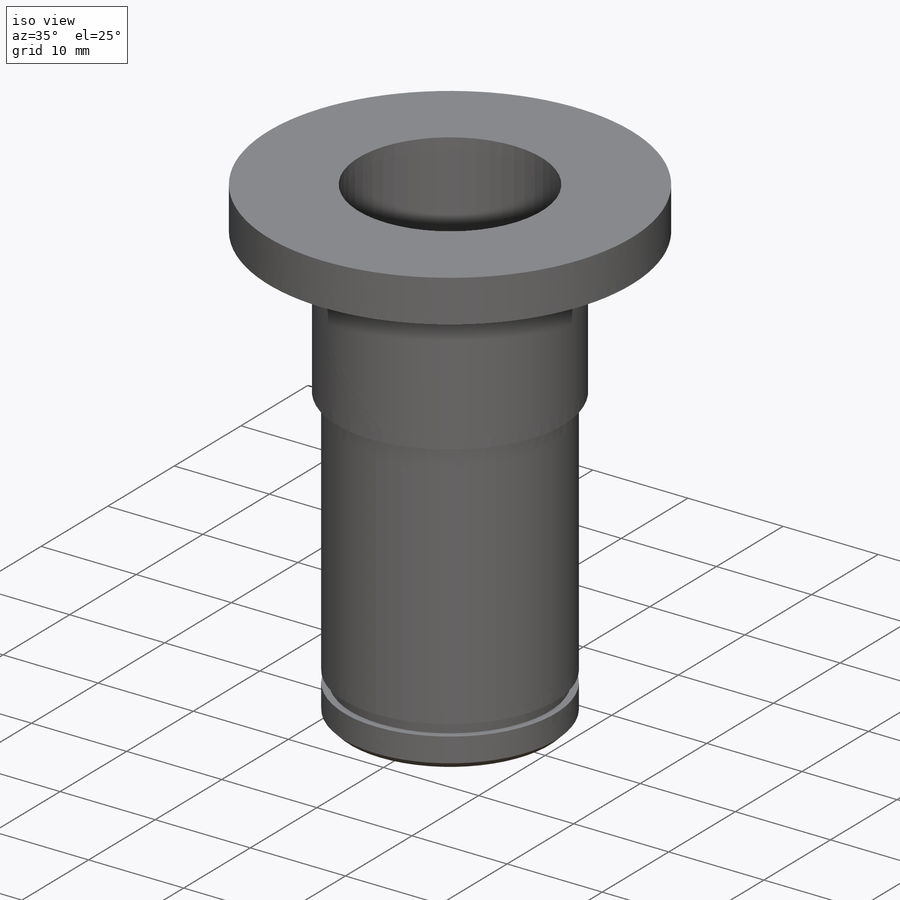
[diagram: iso view]
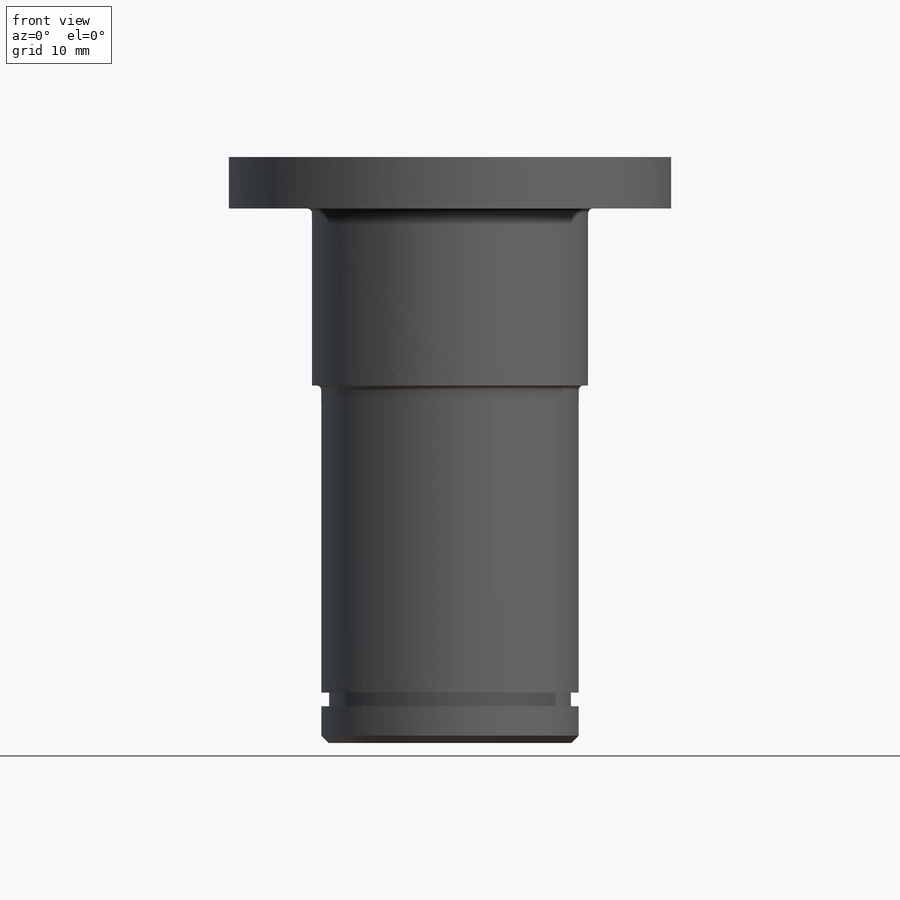
[diagram: front view]
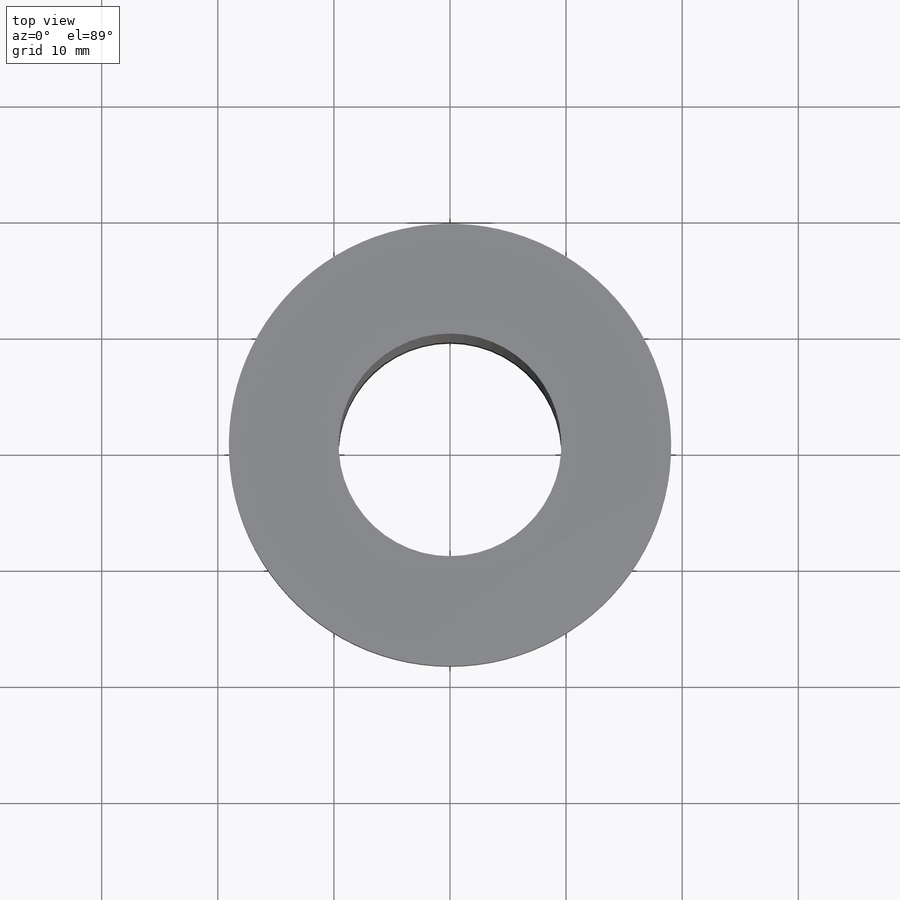
[diagram: top view]
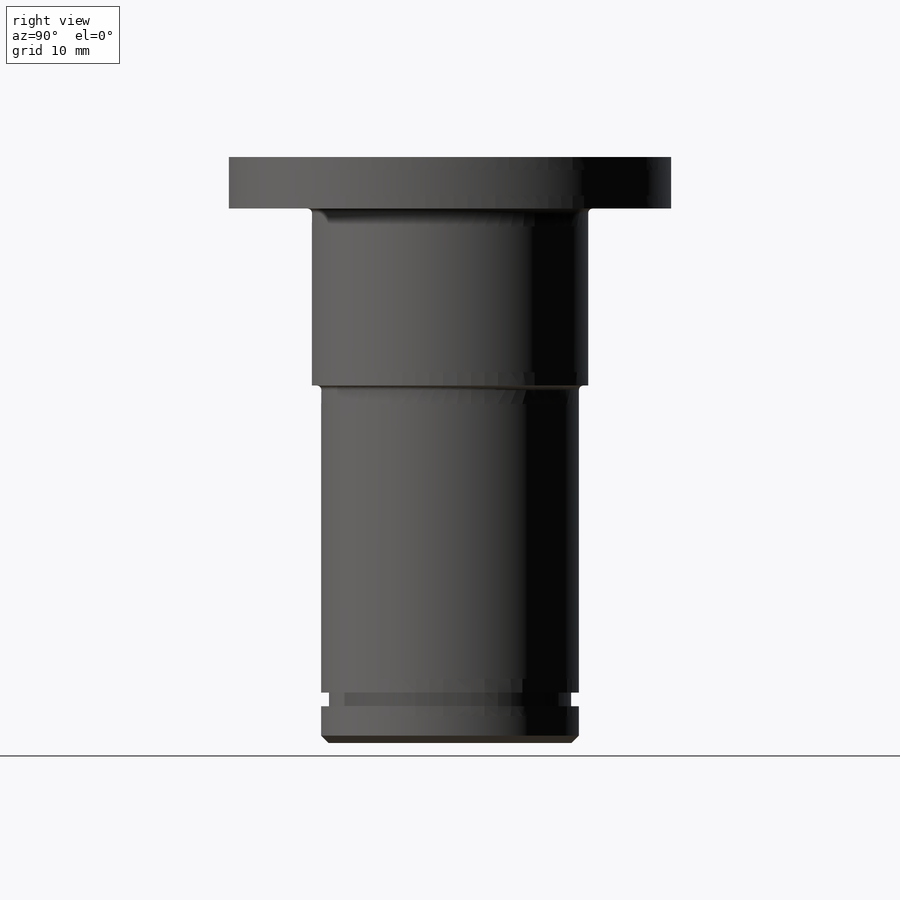
[diagram: right view]
SOLIDWORKS PART (.sldprt)
format: sldprt  version: not decoded by parser v0  size: 384,000 bytes
history: native  units: mm
features: chamfer x13, plane x3, sketch x2, material x1, revolve x1, cut_revolve x1, fillet x1 (+11 scaffold rows collapsed)
feature tree (33):
  scaffold x11  (default folders/planes/origin — collapsed)
  material  "6061-T6 Al"
  plane  "XY"
  plane  "XZ"
  plane  "YZ"
  sketch  "Sketch1"  dims[c1.D1=19.177mm c1.D2=22.1996mm c1.D3=38.1mm c1.D4=39.7002mm c1.D5=4.445mm c2.D4=15.24mm c2.D6=46.0375mm c2.D7=23.7998mm]
  revolve  "Revolve1"  Angle=360deg
  chamfer  "Chamfer1"  Distance=0.635mm Angle=45deg ID=400816004
  chamfer  "stress:Restraint1-1"  Distance=0mm RestraintType=0mm Value=0mm cosRestraintComp:1=0mm cosRestraintComp:2=0mm cosRestraintComp:3=0mm cosRestraintComp:4=0mm cosRestraintComp:5=0mm cosRestraintComp:6=0mm Unit=3000mm AnalysisType=0mm MeshType=0mm cosRestraintCompCheck1=0mm cosRestraintCompCheck2=0mm cosRestraintCompCheck3=0mm cosRestraintCompCheck4=0mm
  chamfer  "stress:Force1-1"  Distance=0mm cosForceComp:1=0mm cosForceComp:2=0mm cosForceComp:3=-9000000mm cosForceComp:4=0mm cosForceComp:5=0mm cosForceComp:6=0mm cosForceTorqueNF=1000mm cosForceCompCheck1=0mm cosForceCompCheck2=0mm cosForceCompCheck3=1000mm cosForceCompCheck4=0mm cosForceCompCheck5=0mm cosForceCompCheck6=0mm Unit=1000mm AnalysisType=0mm
  chamfer  "stress:Restraint2-1"  Distance=4000mm RestraintType=4000mm Value=0mm cosRestraintComp:1=0mm cosRestraintComp:2=0mm cosRestraintComp:3=0mm cosRestraintComp:4=0mm cosRestraintComp:5=0mm cosRestraintComp:6=0mm Unit=3000mm AnalysisType=0mm MeshType=0mm cosRestraintCompCheck1=1000mm cosRestraintCompCheck2=0mm cosRestraintCompCheck3=0mm cosRestraintCompCheck4=0mm
  chamfer  "stress:Material-4"  Distance=10444505000.0mm cosMaterialEX=10444505000.0mm cosMaterialNUXY=330mm cosMaterialGXY=3916689200.0mm cosMaterialALPX=0.013889mm cosMaterialDENS=97.543705mm cosMaterialKX=1.605449mm cosMaterialC=229.33588mm Units=1000mm AnalysisType=0mm MeshType=0mm cosMaterialSIGYLD=0mm cosMaterialSIGXT=0mm cosMaterialSIGXC=0mm sMaterialSourceName=0mm sMaterialName=0mm
  chamfer  "FaceID-1"  Distance=1000mm faceID=1000mm cosFaceID=0
  chamfer  "FaceID-2"  Distance=2000mm faceID=2000mm
  chamfer  "FaceID-3"  Distance=3000mm faceID=3000mm
  chamfer  "FaceID-4"  Distance=4000mm faceID=4000mm
  chamfer  "FaceID-5"  Distance=5000mm faceID=5000mm
  chamfer  "FaceID-6"  Distance=6000mm faceID=6000mm
  chamfer  "FaceID-7"  Distance=7000mm faceID=7000mm
  chamfer  "FaceID-8"  Distance=8000mm faceID=8000mm
  sketch  "Sketch3"  dims[c1.D1=~1.704158mm c2.D1=~178.869309deg c3.D1=20.8534mm c3.D2=1.1684mm c3.D3=9.525mm c3.D4=39.37mm c4.D3=3.175mm]
  cut_revolve  "Cut-Revolve1"  Angle=360deg
  fillet  "Fillet1"  Radius=0.396875mm
decode coverage: 18 of 18 modeling features carry decoded parameters
note: ~ marks probable driven/reference dimensions
note: suppression state not decoded; provenance and decode notes live in map.json
